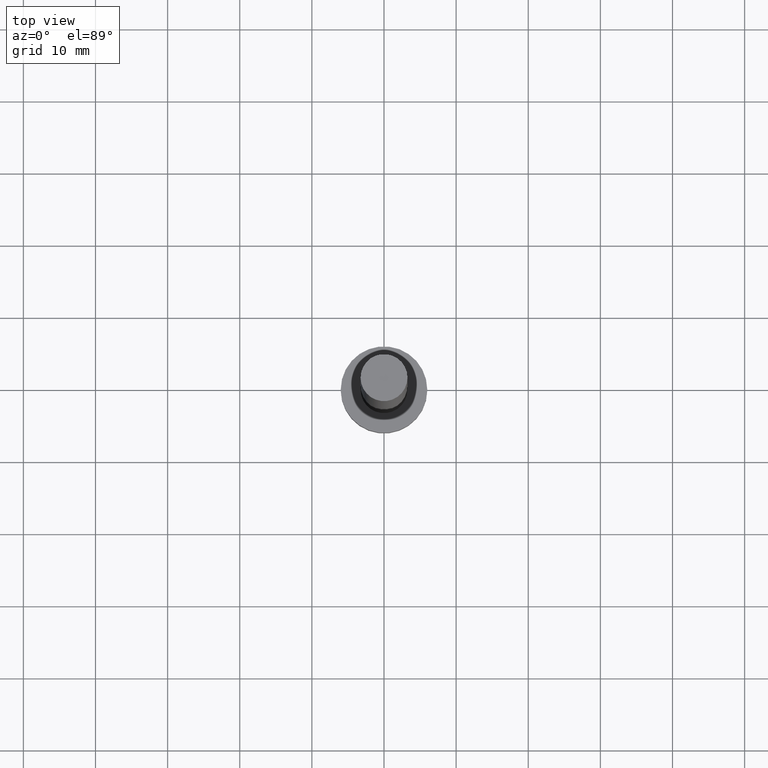
[diagram: clean part render]
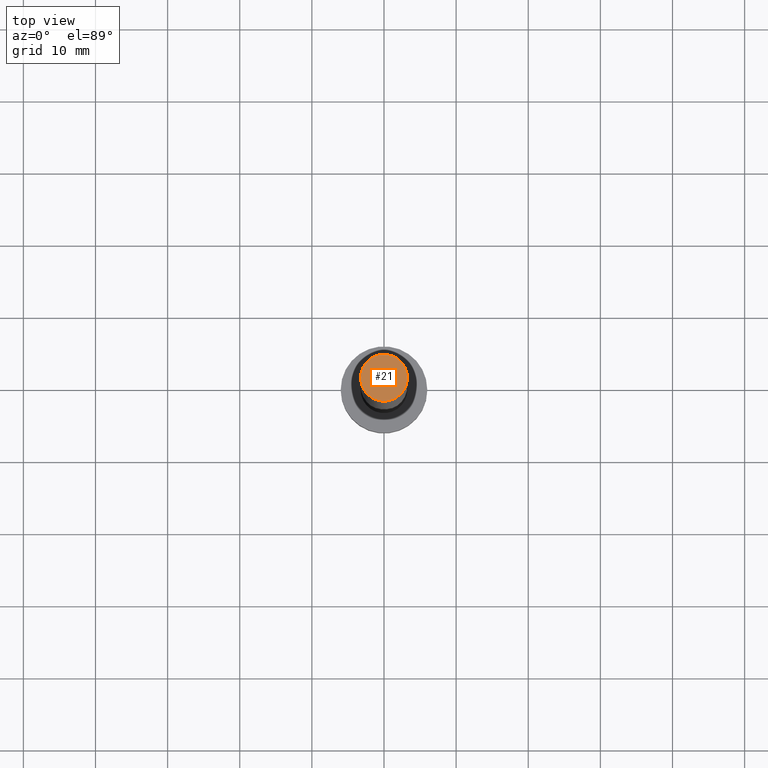
[diagram: same view with one face highlighted and labeled with its STEP entity id]
A machine part, top view. The second image highlights one B-rep face of the part: STEP entity #21.
In plain terms, the highlighted planar face has unit normal (0, 0, 1).
Its self-contained STEP definition (entity closure, byte-faithful):
#12 = DIRECTION ( 'NONE',  ( 1.000000000000000000, 0.000000000000000000, 0.000000000000000000 ) ) ;
#15 = VERTEX_POINT ( 'NONE', #46 ) ;
#21 = ADVANCED_FACE ( 'NONE', ( #140 ), #137, .T. ) ;
#25 = VERTEX_POINT ( 'NONE', #252 ) ;
#46 = CARTESIAN_POINT ( 'NONE',  ( -3.250000000000000444, 0.000000000000000000, 100.0000000000000000 ) ) ;
#65 = AXIS2_PLACEMENT_3D ( 'NONE', #201, #102, #179 ) ;
#73 = EDGE_CURVE ( 'NONE', #15, #25, #242, .T. ) ;
#74 = AXIS2_PLACEMENT_3D ( 'NONE', #176, #215, #174 ) ;
#91 = AXIS2_PLACEMENT_3D ( 'NONE', #184, #113, #12 ) ;
#95 = ORIENTED_EDGE ( 'NONE', *, *, #73, .T. ) ;
#98 = EDGE_CURVE ( 'NONE', #25, #15, #171, .T. ) ;
#102 = DIRECTION ( 'NONE',  ( 0.000000000000000000, 0.000000000000000000, 1.000000000000000000 ) ) ;
#113 = DIRECTION ( 'NONE',  ( 0.000000000000000000, 0.000000000000000000, 1.000000000000000000 ) ) ;
#114 = ORIENTED_EDGE ( 'NONE', *, *, #98, .T. ) ;
#137 = PLANE ( 'NONE',  #74 ) ;
#140 = FACE_OUTER_BOUND ( 'NONE', #188, .T. ) ;
#171 = CIRCLE ( 'NONE', #91, 3.250000000000000444 ) ;
#174 = DIRECTION ( 'NONE',  ( 1.000000000000000000, 0.000000000000000000, -0.000000000000000000 ) ) ;
#176 = CARTESIAN_POINT ( 'NONE',  ( 0.000000000000000000, 0.000000000000000000, 100.0000000000000000 ) ) ;
#179 = DIRECTION ( 'NONE',  ( 1.000000000000000000, 0.000000000000000000, 0.000000000000000000 ) ) ;
#184 = CARTESIAN_POINT ( 'NONE',  ( 0.000000000000000000, 0.000000000000000000, 100.0000000000000000 ) ) ;
#188 = EDGE_LOOP ( 'NONE', ( #95, #114 ) ) ;
#201 = CARTESIAN_POINT ( 'NONE',  ( 0.000000000000000000, 0.000000000000000000, 100.0000000000000000 ) ) ;
#215 = DIRECTION ( 'NONE',  ( 0.000000000000000000, 0.000000000000000000, 1.000000000000000000 ) ) ;
#242 = CIRCLE ( 'NONE', #65, 3.250000000000000444 ) ;
#252 = CARTESIAN_POINT ( 'NONE',  ( 3.250000000000000444, 3.980102097228898231E-16, 100.0000000000000000 ) ) ;